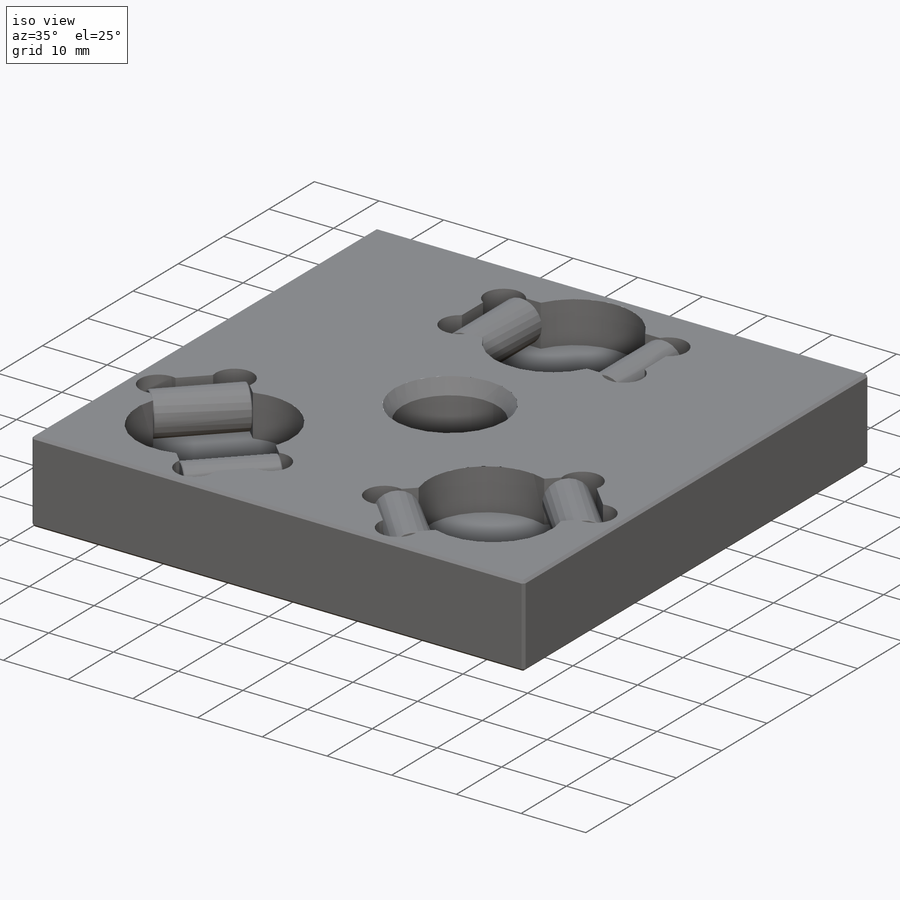
[diagram: iso view]
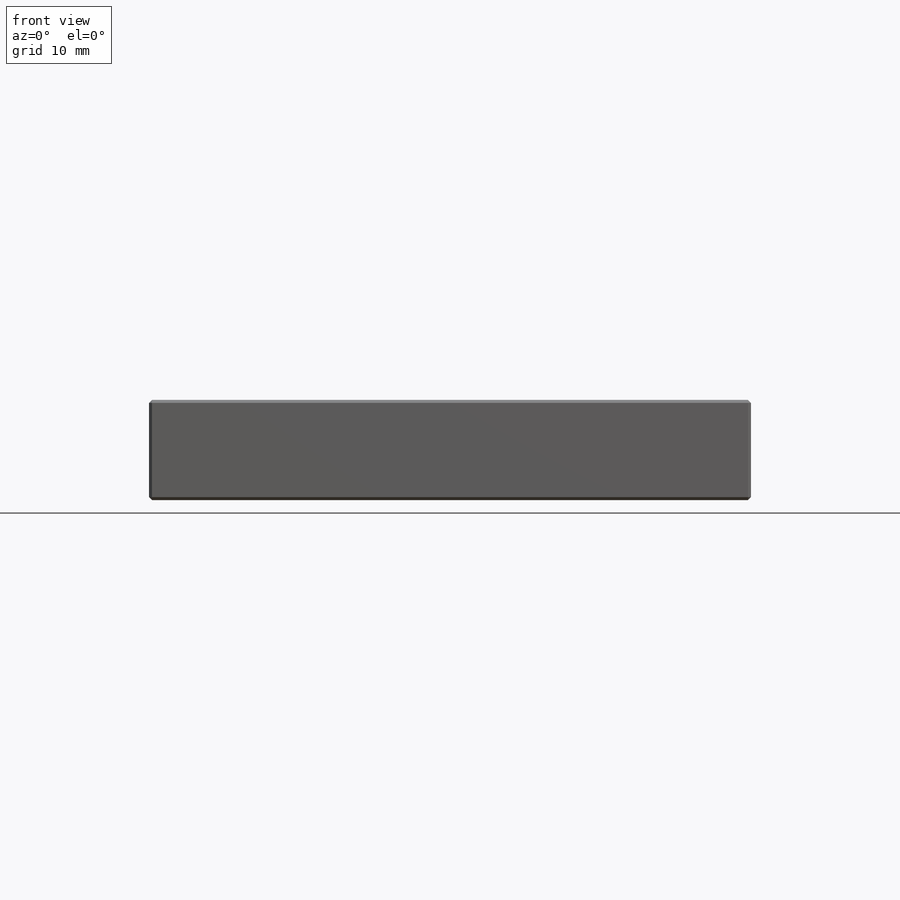
[diagram: front view]
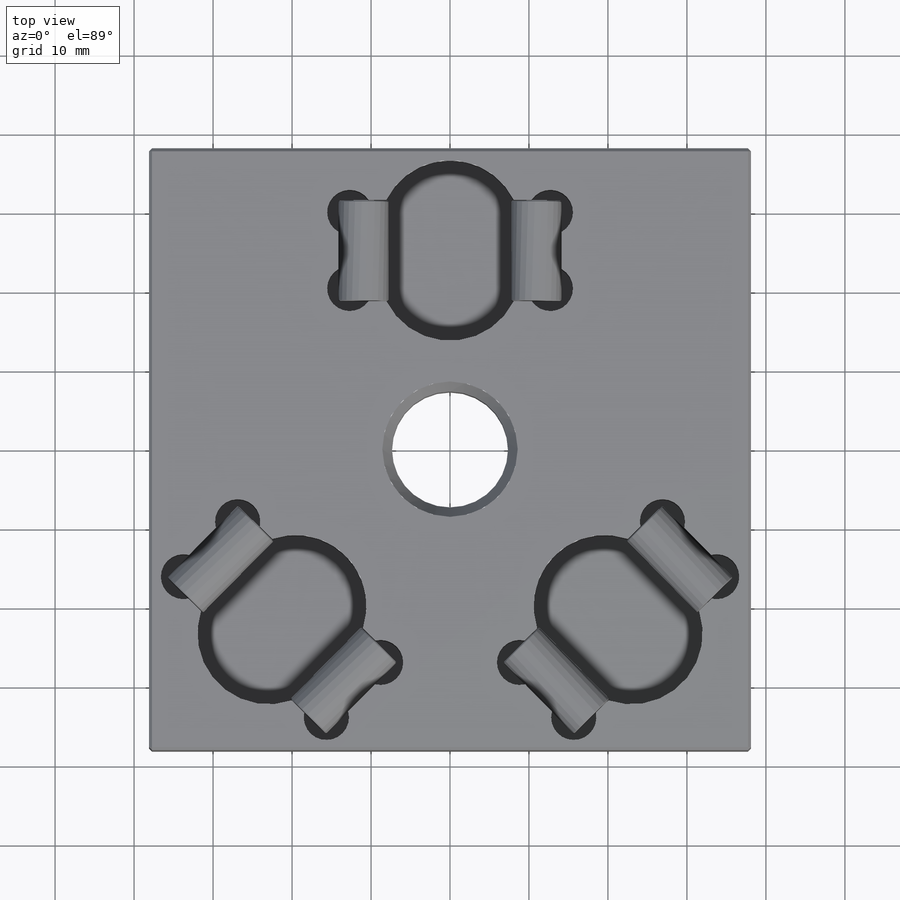
[diagram: top view]
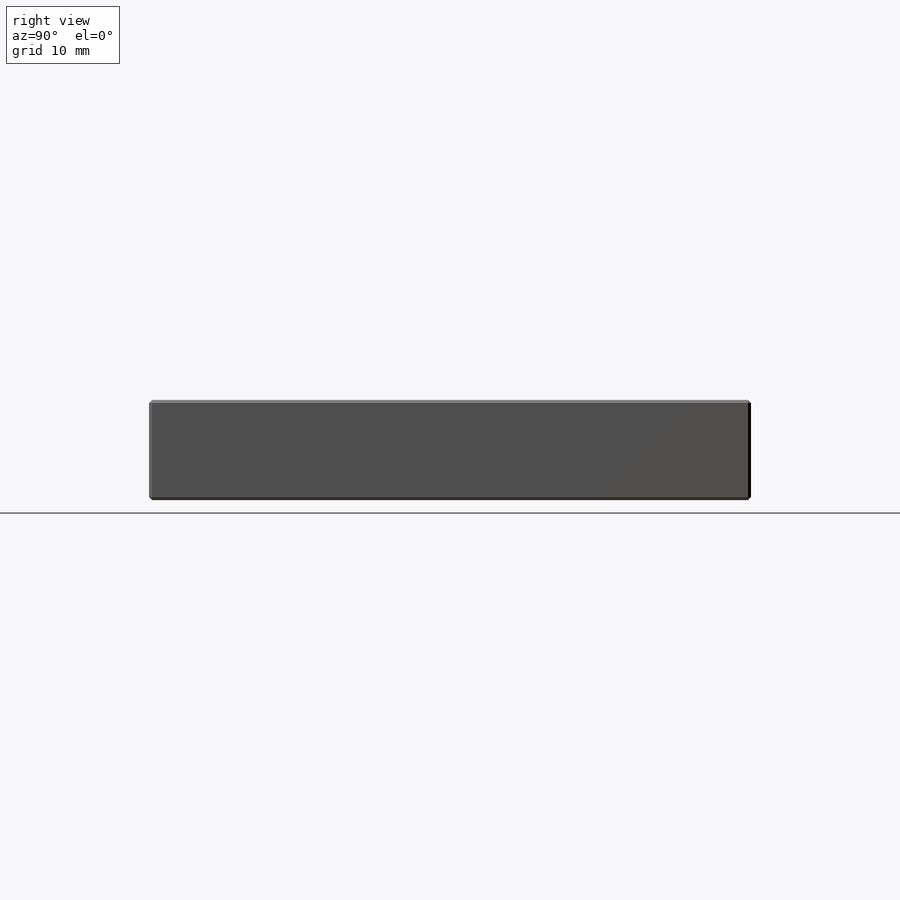
[diagram: right view]
SOLIDWORKS PART (.sldprt)
format: sldprt  version: not decoded by parser v0  size: 1,149,440 bytes
history: native  units: mm
features: sketch x12, chamfer x7, plane x6, cut_extrude x5, extrude x4, thread x2, material x1, hole x1, mirror x1 + 3 further entries (+9 scaffold rows collapsed)
feature tree (51):
  scaffold x9  (default folders/planes/origin — collapsed)
  material  "Material <not specified>"
  plane  "Plane X-Y"
  plane  "Plane X-Z"
  plane  "Plane Y-Z"
  "Axis - Y"
  "Axis - Z"
  sketch  "Sketch1"  dims[D1=76.2mm]
  extrude  "Extrude1"  Depth=12.7mm
  hole  "5/8-18 Tapped Hole1"  Diameter=14.68374mm Depth=12.7mm
  sketch  "Sketch3"
  sketch  "Sketch4"  dims[hole-wizard template sketch: 54 standard entries collapsed; hole parameters above]
  thread  "Hole Thread1"  Diameter=15.875mm  [1 undecoded]
  thread  "Cosmetic Thread1"  Diameter=12.7mm  [1 undecoded]
  sketch  "Sketch8"  dims[c1.D1=17.78mm c1.D2=17.78mm c2.D1=8.89mm c2.D2=22.86mm c3.D1=22.86mm c3.D2=~13.363735mm c3.D3=16.129mm c3.D4=1.524mm c3.D5=12.827mm]
  cut_extrude  "Cut-Extrude1"  Depth=6.4262mm
  sketch  "Sketch9"  dims[c1.D2=~5.861598mm c1.D3=5.715mm c1.D4=5.715mm c1.D1=28.2575mm c2.D2=15.367mm c2.D1=28.2575mm c2.D4=15.5575mm]
  cut_extrude  "Cut-Extrude2"  [1 undecoded]
  plane  "Plane1"
  sketch  "Sketch10"  dims[D1=6.35mm]
  extrude  "Extrude2"  Depth=12.7mm
  chamfer  "Chamfer1"  Distance=0.127mm Angle=45deg
  chamfer  "Chamfer2"  Distance=0.127mm Angle=45deg
  sketch  "Sketch11"  dims[D1=42.545mm D2=16.51mm]
  "Axis1"
  sketch  "Sketch84"  dims[c1.D1=17.78mm c1.D2=17.78mm c2.D1=8.89mm c2.D2=22.86mm c3.D1=22.86mm c3.D2=~13.363735mm c3.D3=16.129mm c3.D4=26.67mm c3.D5=12.827mm c4.D4=13.97mm c5.D4=85.0deg]
  cut_extrude  "Cut-Extrude14"  Depth=6.4262mm
  sketch  "Sketch94"  dims[c1.D2=~5.861598mm c1.D3=5.715mm c1.D4=5.715mm c2.D2=2.8575mm c2.D4=2.8575mm c2.D1=28.2575mm c3.D2=15.367mm c3.D1=28.2575mm c3.D4=15.5575mm c4.D2=31.115mm c4.D4=15.494mm]
  cut_extrude  "Cut-Extrude24"  [1 undecoded]
  plane  "Plane2"
  mirror  "Mirror5"
  sketch  "Sketch95"  dims[D1=6.35mm]
  extrude  "Extrude3"  Depth=12.7mm
  chamfer  "Chamfer3"  Distance=0.127mm Angle=45deg
  chamfer  "Chamfer4"  Distance=0.127mm Angle=45deg
  plane  "Plane3"
  sketch  "Sketch96"  dims[D1=6.35mm]
  extrude  "Extrude4"  Depth=12.7mm
  chamfer  "Chamfer5"  Distance=0.127mm Angle=45deg
  chamfer  "Chamfer6"  Distance=0.127mm Angle=45deg
  sketch  "Sketch97"  dims[c1.D1=~68.344113mm c1.D2=~68.344113mm c2.D1=3.81mm]
  cut_extrude  "Cut-Extrude25"  Depth=0.0762mm
  chamfer  "Chamfer7"  Distance=0.381mm Angle=45deg
decode coverage: 28 of 32 modeling features carry decoded parameters; 3 rows unclassified (native names shown)
note: ~ marks probable driven/reference dimensions
note: 4 parameter values undecoded
note: suppression state not decoded; provenance and decode notes live in map.json
